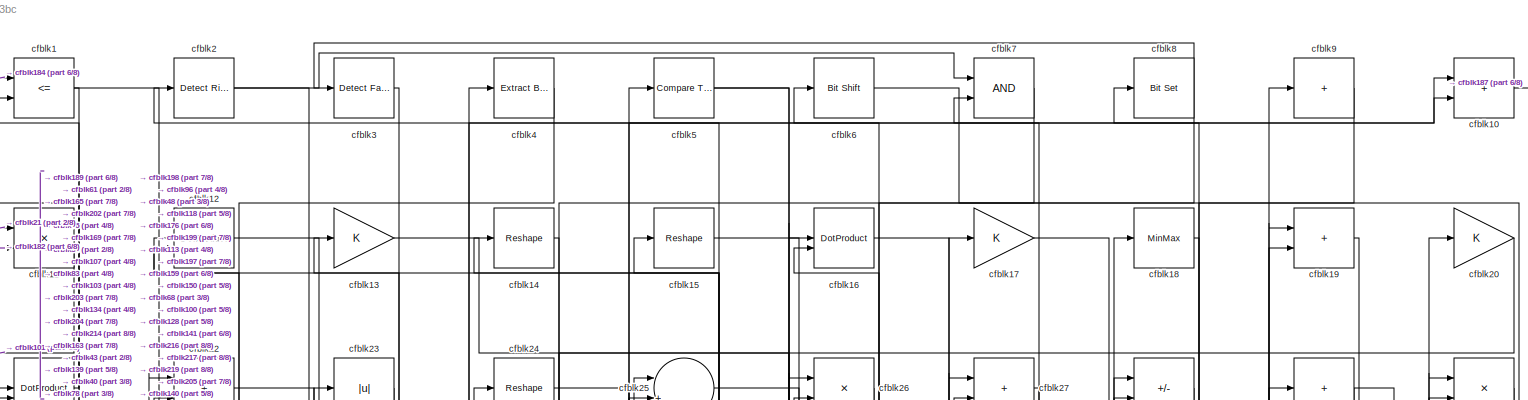
[diagram: root canvas - part 1/8, full width, top band]
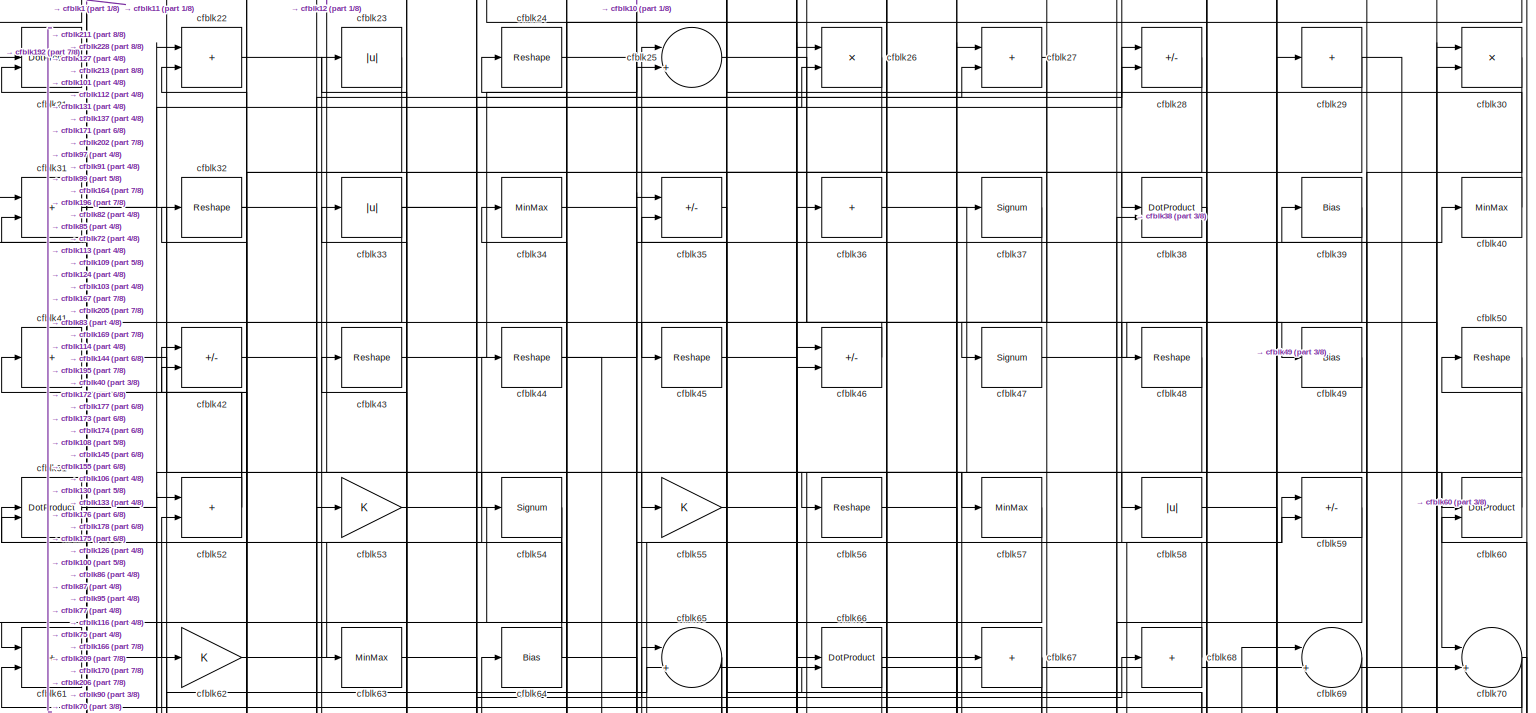
[diagram: root canvas - part 2/8, full width, top band]
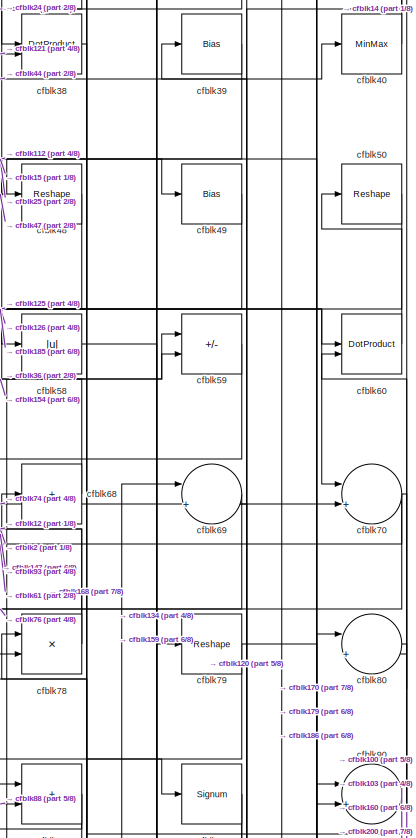
[diagram: root canvas - part 3/8, top right region]
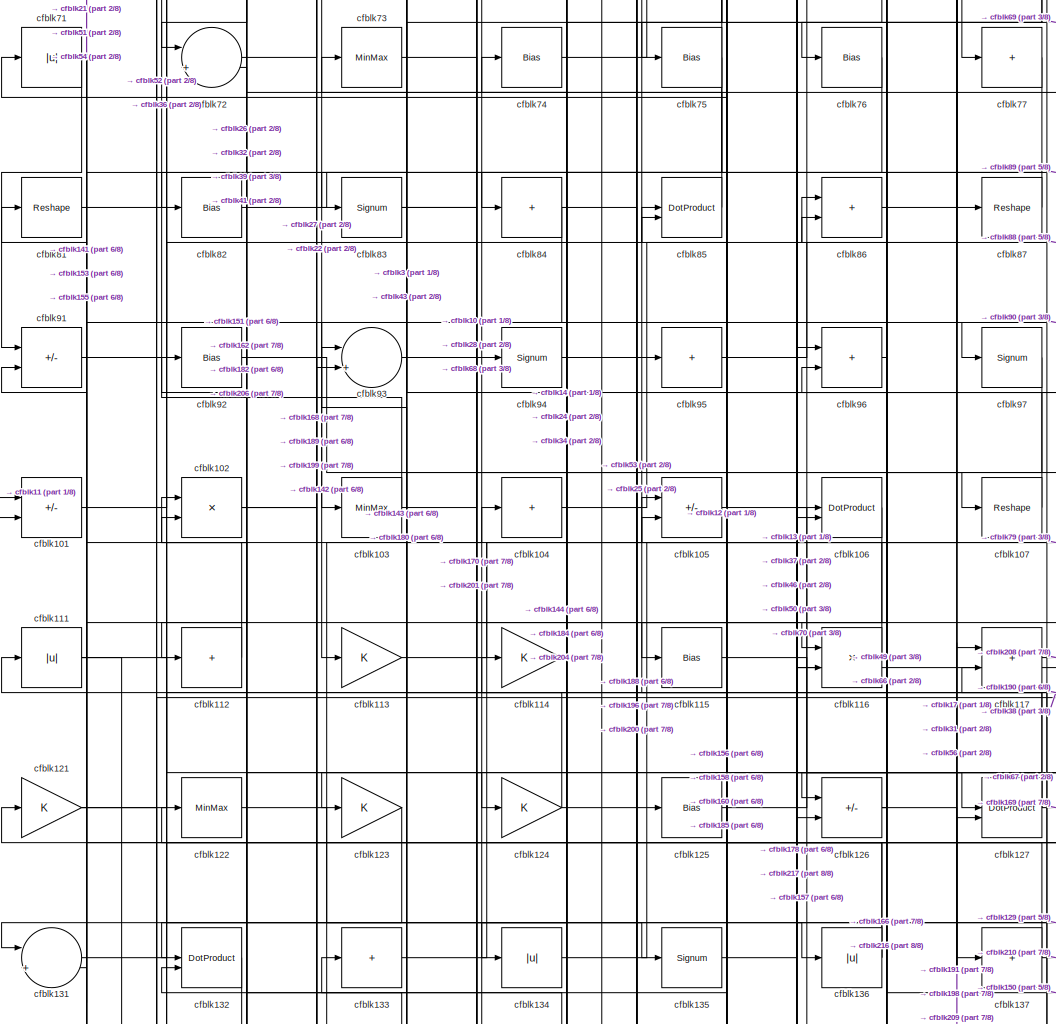
[diagram: root canvas - part 4/8, central region]
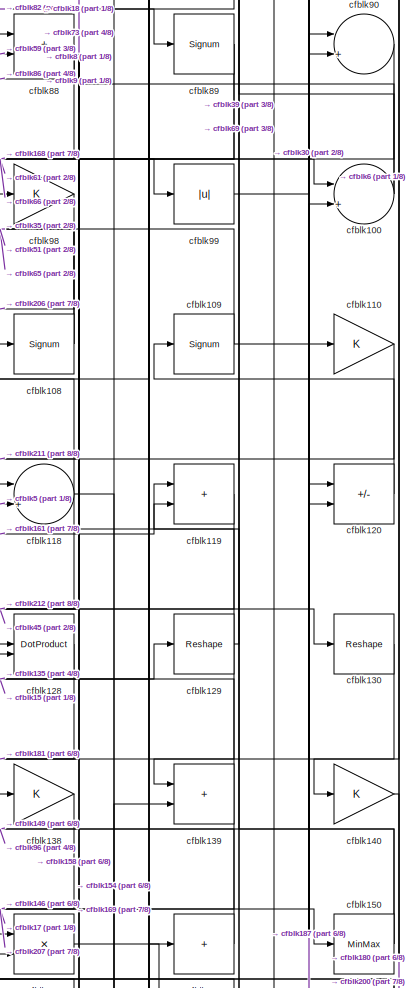
[diagram: root canvas - part 5/8, middle right region]
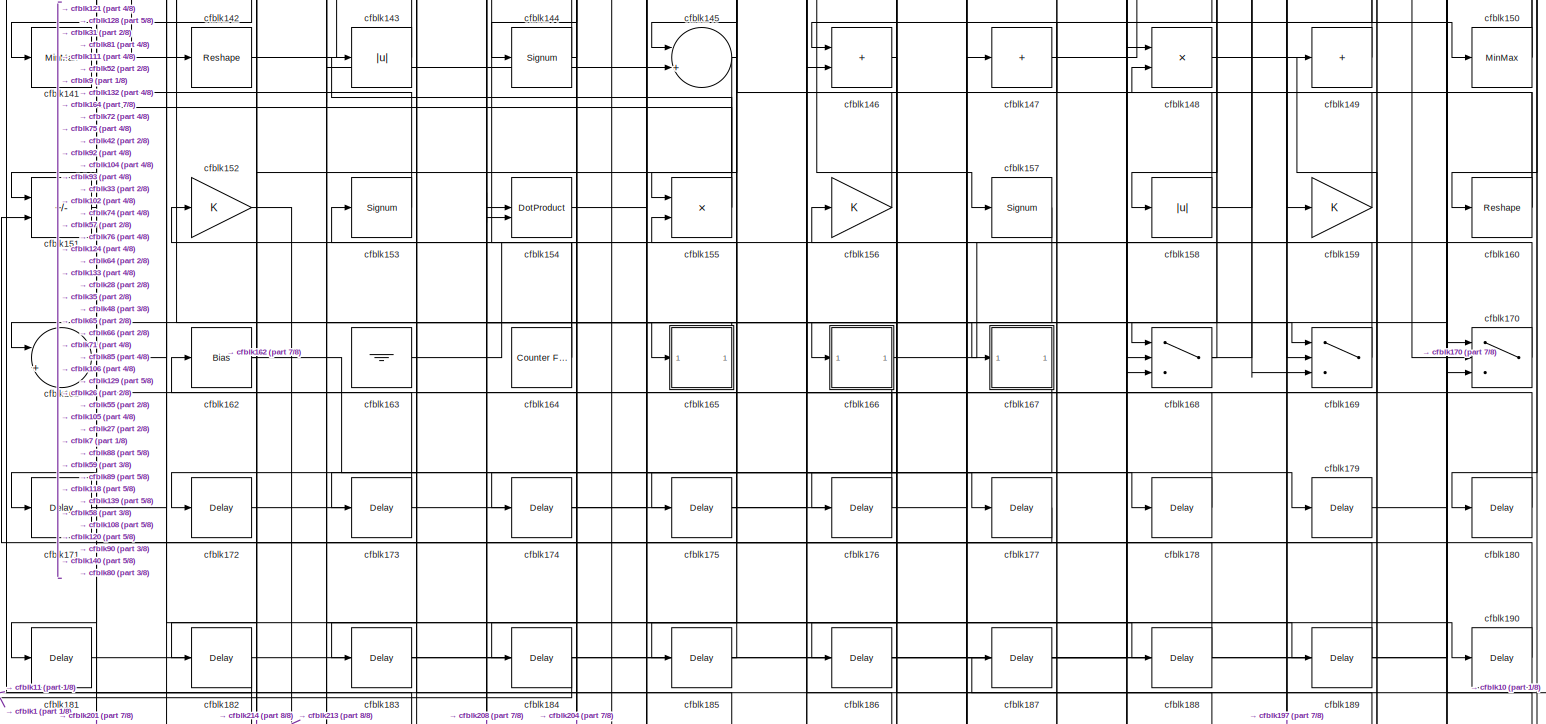
[diagram: root canvas - part 6/8, full width, bottom band]
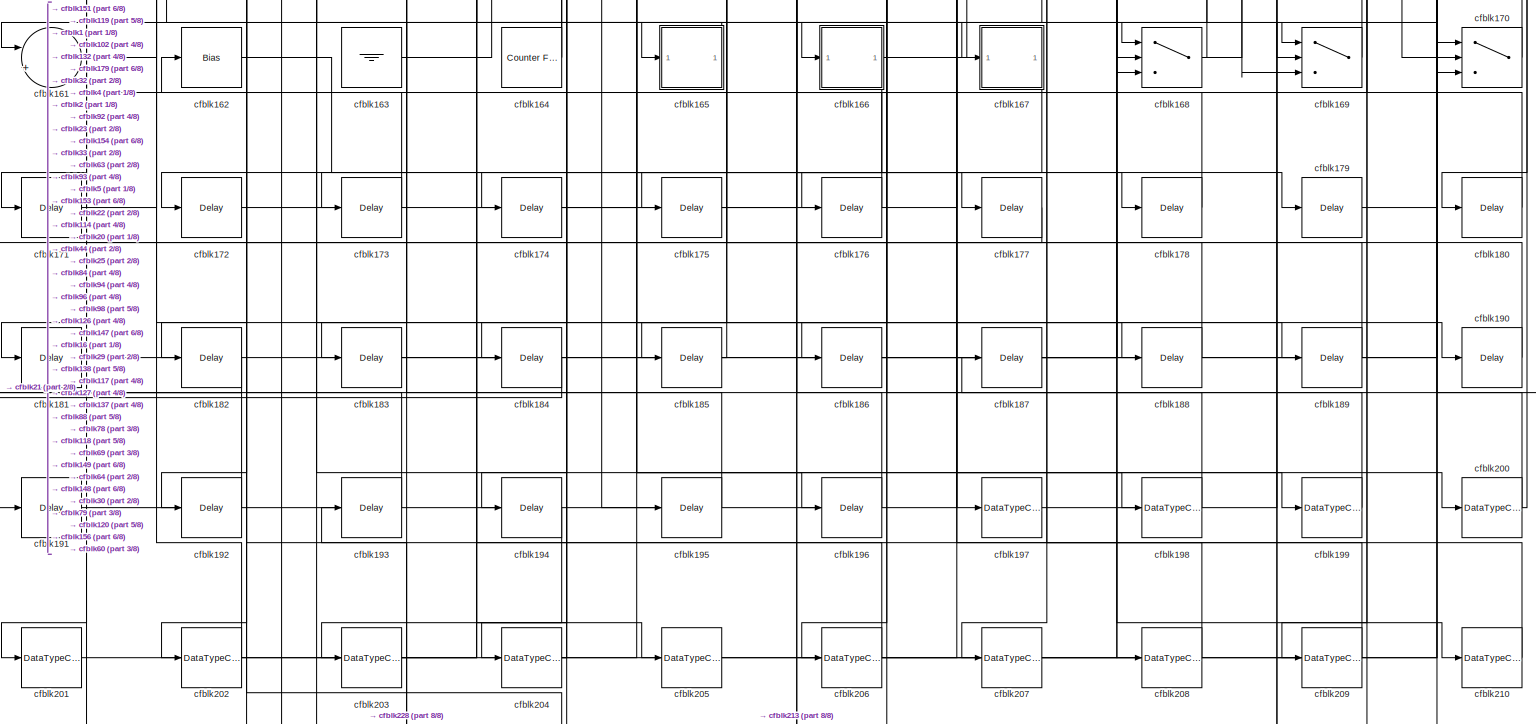
[diagram: root canvas - part 7/8, full width, bottom band]
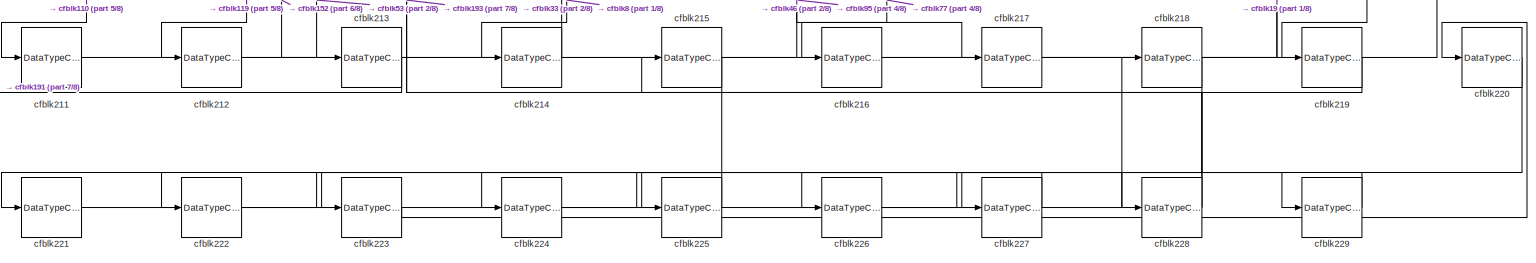
[diagram: root canvas - part 8/8, full width, bottom band]
MODEL slx_db558e9923bc
KIND model
CONFIG AbsTol = auto
CONFIG EnableMultiTasking = off
CONFIG FixedStep = auto
CONFIG MaxStep = auto
CONFIG MinStep = auto
CONFIG RelTol = 1e-3
CONFIG SampleTimeConstraint = Unconstrained
CONFIG SolverName = VariableStepAuto
CONFIG StartTime = 0.0
CONFIG StopTime = 10.0
BLOCK [RelationalOperator] cfblk1
  InputSameDT = off
  Operator = <=
  OutDataTypeStr = boolean
BLOCK [Sum] cfblk10
  IconShape = rectangular
BLOCK [Sum] cfblk100
  Inputs = |++
BLOCK [Sum] cfblk101
  IconShape = rectangular
  Inputs = +-
BLOCK [Product] cfblk102
  Inputs = */
  RndMeth = Zero
  SaturateOnIntegerOverflow = on
BLOCK [MinMax] cfblk103
BLOCK [Sum] cfblk104
  IconShape = rectangular
  Inputs = +
BLOCK [Sum] cfblk105
  IconShape = rectangular
  Inputs = +-
BLOCK [DotProduct] cfblk106
  OutDataTypeStr = Inherit: Inherit via internal rule
BLOCK [Reshape] cfblk107
BLOCK [Signum] cfblk108
BLOCK [Signum] cfblk109
BLOCK [Product] cfblk11
  Inputs = */
  RndMeth = Zero
  SaturateOnIntegerOverflow = on
BLOCK [Gain] cfblk110
BLOCK [Abs] cfblk111
  SaturateOnIntegerOverflow = off
BLOCK [Sum] cfblk112
  IconShape = rectangular
  Inputs = +
BLOCK [Gain] cfblk113
BLOCK [Gain] cfblk114
BLOCK [Bias] cfblk115
  Bias = 0.0
  SaturateOnIntegerOverflow = off
BLOCK [Product] cfblk116
  Inputs = */
  RndMeth = Zero
  SaturateOnIntegerOverflow = on
BLOCK [Sum] cfblk117
  IconShape = rectangular
BLOCK [Sum] cfblk118
  Inputs = |++
BLOCK [Sum] cfblk119
  IconShape = rectangular
BLOCK [DotProduct] cfblk12
  OutDataTypeStr = Inherit: Inherit via internal rule
BLOCK [Sum] cfblk120
  IconShape = rectangular
  Inputs = +-
BLOCK [Gain] cfblk121
BLOCK [MinMax] cfblk122
BLOCK [Gain] cfblk123
BLOCK [Gain] cfblk124
BLOCK [Bias] cfblk125
  Bias = 0.0
  SaturateOnIntegerOverflow = off
BLOCK [Sum] cfblk126
  IconShape = rectangular
  Inputs = +-
BLOCK [DotProduct] cfblk127
  OutDataTypeStr = Inherit: Inherit via internal rule
BLOCK [DotProduct] cfblk128
  OutDataTypeStr = Inherit: Inherit via internal rule
BLOCK [Reshape] cfblk129
BLOCK [Gain] cfblk13
BLOCK [Reshape] cfblk130
BLOCK [Sum] cfblk131
  Inputs = |++
BLOCK [DotProduct] cfblk132
  OutDataTypeStr = Inherit: Inherit via internal rule
BLOCK [Sum] cfblk133
  IconShape = rectangular
  Inputs = +
BLOCK [Abs] cfblk134
  SaturateOnIntegerOverflow = off
BLOCK [Signum] cfblk135
BLOCK [Abs] cfblk136
  SaturateOnIntegerOverflow = off
BLOCK [Sum] cfblk137
  IconShape = rectangular
  Inputs = +
BLOCK [Gain] cfblk138
BLOCK [Sum] cfblk139
  IconShape = rectangular
BLOCK [Reshape] cfblk14
BLOCK [Gain] cfblk140
BLOCK [MinMax] cfblk141
BLOCK [Reshape] cfblk142
BLOCK [Abs] cfblk143
  SaturateOnIntegerOverflow = off
BLOCK [Signum] cfblk144
BLOCK [Sum] cfblk145
  Inputs = |++
BLOCK [Sum] cfblk146
  IconShape = rectangular
BLOCK [Sum] cfblk147
  IconShape = rectangular
  Inputs = +
BLOCK [Product] cfblk148
  Inputs = */
  RndMeth = Zero
  SaturateOnIntegerOverflow = on
BLOCK [Sum] cfblk149
  IconShape = rectangular
  Inputs = +
BLOCK [Reshape] cfblk15
BLOCK [MinMax] cfblk150
BLOCK [Sum] cfblk151
  IconShape = rectangular
  Inputs = +-
BLOCK [Gain] cfblk152
BLOCK [Signum] cfblk153
BLOCK [DotProduct] cfblk154
  OutDataTypeStr = Inherit: Inherit via internal rule
BLOCK [Product] cfblk155
  Inputs = */
  RndMeth = Zero
  SaturateOnIntegerOverflow = on
BLOCK [Gain] cfblk156
BLOCK [Signum] cfblk157
BLOCK [Abs] cfblk158
  SaturateOnIntegerOverflow = off
BLOCK [Gain] cfblk159
BLOCK [DotProduct] cfblk16
  OutDataTypeStr = Inherit: Inherit via internal rule
BLOCK [Reshape] cfblk160
BLOCK [Sum] cfblk161
  Inputs = |++
BLOCK [Bias] cfblk162
  Bias = 0.0
  SaturateOnIntegerOverflow = off
BLOCK [Ground] cfblk163
BLOCK [Reference] cfblk164  REF=hdlsllib/Sources/Counter
Free-Running
  SourceBlock = hdlsllib/Sources/Counter\nFree-Running
  SourceType = Counter Free-Running
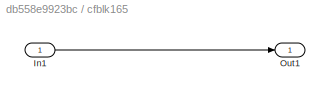
BLOCK [SubSystem] cfblk165
  LibrarySourceBlock = hdlsllib/Ports &\nSubsystems/Subsystem
BLOCK [Inport] cfblk165/In1
BLOCK [Outport] cfblk165/Out1
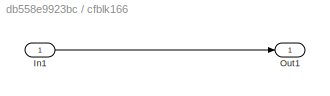
BLOCK [SubSystem] cfblk166
  LibrarySourceBlock = hdlsllib/Ports &\nSubsystems/Subsystem
BLOCK [Inport] cfblk166/In1
BLOCK [Outport] cfblk166/Out1
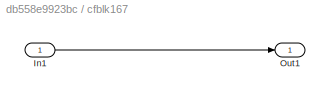
BLOCK [SubSystem] cfblk167
  LibrarySourceBlock = hdlsllib/Ports &\nSubsystems/Subsystem
BLOCK [Inport] cfblk167/In1
BLOCK [Outport] cfblk167/Out1
BLOCK [Switch] cfblk168
  InputSameDT = off
  SaturateOnIntegerOverflow = off
BLOCK [Switch] cfblk169
  InputSameDT = off
  SaturateOnIntegerOverflow = off
BLOCK [Gain] cfblk17
BLOCK [Switch] cfblk170
  InputSameDT = off
  SaturateOnIntegerOverflow = off
BLOCK [Delay] cfblk171
  InputPortMap = u0
  SampleTime = 1
BLOCK [Delay] cfblk172
  InputPortMap = u0
  SampleTime = 1
BLOCK [Delay] cfblk173
  InputPortMap = u0
  SampleTime = 1
BLOCK [Delay] cfblk174
  InputPortMap = u0
  SampleTime = 1
BLOCK [Delay] cfblk175
  InputPortMap = u0
  SampleTime = 1
BLOCK [Delay] cfblk176
  InputPortMap = u0
  SampleTime = 1
BLOCK [Delay] cfblk177
  InputPortMap = u0
  SampleTime = 1
BLOCK [Delay] cfblk178
  InputPortMap = u0
  SampleTime = 1
BLOCK [Delay] cfblk179
  InputPortMap = u0
  SampleTime = 1
BLOCK [MinMax] cfblk18
BLOCK [Delay] cfblk180
  InputPortMap = u0
  SampleTime = 1
BLOCK [Delay] cfblk181
  InputPortMap = u0
  SampleTime = 1
BLOCK [Delay] cfblk182
  InputPortMap = u0
  SampleTime = 1
BLOCK [Delay] cfblk183
  InputPortMap = u0
  SampleTime = 1
BLOCK [Delay] cfblk184
  InputPortMap = u0
  SampleTime = 1
BLOCK [Delay] cfblk185
  InputPortMap = u0
  SampleTime = 1
BLOCK [Delay] cfblk186
  InputPortMap = u0
  SampleTime = 1
BLOCK [Delay] cfblk187
  InputPortMap = u0
  SampleTime = 1
BLOCK [Delay] cfblk188
  InputPortMap = u0
  SampleTime = 1
BLOCK [Delay] cfblk189
  InputPortMap = u0
  SampleTime = 1
BLOCK [Sum] cfblk19
  IconShape = rectangular
BLOCK [Delay] cfblk190
  InputPortMap = u0
  SampleTime = 1
BLOCK [Delay] cfblk191
  InputPortMap = u0
  SampleTime = 1
BLOCK [Delay] cfblk192
  InputPortMap = u0
  SampleTime = 1
BLOCK [Delay] cfblk193
  InputPortMap = u0
  SampleTime = 1
BLOCK [Delay] cfblk194
  InputPortMap = u0
  SampleTime = 1
BLOCK [Delay] cfblk195
  InputPortMap = u0
  SampleTime = 1
BLOCK [Delay] cfblk196
  InputPortMap = u0
  SampleTime = 1
BLOCK [DataTypeConversion] cfblk197
  OutDataTypeStr = uint8
  RndMeth = Floor
  SaturateOnIntegerOverflow = off
BLOCK [DataTypeConversion] cfblk198
  OutDataTypeStr = uint8
  RndMeth = Floor
  SaturateOnIntegerOverflow = off
BLOCK [DataTypeConversion] cfblk199
  OutDataTypeStr = uint8
  RndMeth = Floor
  SaturateOnIntegerOverflow = off
BLOCK [Reference] cfblk2  REF=hdlsllib/Logic and Bit
Operations/Detect Rise
Positive
  SourceBlock = hdlsllib/Logic and Bit\nOperations/Detect Rise\nPositive
  SourceType = Detect Rise Positive
BLOCK [Gain] cfblk20
BLOCK [DataTypeConversion] cfblk200
  RndMeth = Floor
  SaturateOnIntegerOverflow = off
BLOCK [DataTypeConversion] cfblk201
  OutDataTypeStr = uint8
  RndMeth = Floor
  SaturateOnIntegerOverflow = off
BLOCK [DataTypeConversion] cfblk202
  RndMeth = Floor
  SaturateOnIntegerOverflow = off
BLOCK [DataTypeConversion] cfblk203
  OutDataTypeStr = uint8
  RndMeth = Floor
  SaturateOnIntegerOverflow = off
BLOCK [DataTypeConversion] cfblk204
  RndMeth = Floor
  SaturateOnIntegerOverflow = off
BLOCK [DataTypeConversion] cfblk205
  OutDataTypeStr = uint8
  RndMeth = Floor
  SaturateOnIntegerOverflow = off
BLOCK [DataTypeConversion] cfblk206
  RndMeth = Floor
  SaturateOnIntegerOverflow = off
BLOCK [DataTypeConversion] cfblk207
  OutDataTypeStr = uint8
  RndMeth = Floor
  SaturateOnIntegerOverflow = off
BLOCK [DataTypeConversion] cfblk208
  OutDataTypeStr = uint8
  RndMeth = Floor
  SaturateOnIntegerOverflow = off
BLOCK [DataTypeConversion] cfblk209
  OutDataTypeStr = uint8
  RndMeth = Floor
  SaturateOnIntegerOverflow = off
BLOCK [DotProduct] cfblk21
  OutDataTypeStr = Inherit: Inherit via internal rule
BLOCK [DataTypeConversion] cfblk210
  OutDataTypeStr = uint8
  RndMeth = Floor
  SaturateOnIntegerOverflow = off
BLOCK [DataTypeConversion] cfblk211
  OutDataTypeStr = uint8
  RndMeth = Floor
  SaturateOnIntegerOverflow = off
BLOCK [DataTypeConversion] cfblk212
  OutDataTypeStr = uint8
  RndMeth = Floor
  SaturateOnIntegerOverflow = off
BLOCK [DataTypeConversion] cfblk213
  RndMeth = Floor
  SaturateOnIntegerOverflow = off
BLOCK [DataTypeConversion] cfblk214
  OutDataTypeStr = uint8
  RndMeth = Floor
  SaturateOnIntegerOverflow = off
BLOCK [DataTypeConversion] cfblk215
  RndMeth = Floor
  SaturateOnIntegerOverflow = off
BLOCK [DataTypeConversion] cfblk216
  OutDataTypeStr = uint8
  RndMeth = Floor
  SaturateOnIntegerOverflow = off
BLOCK [DataTypeConversion] cfblk217
  OutDataTypeStr = uint8
  RndMeth = Floor
  SaturateOnIntegerOverflow = off
BLOCK [DataTypeConversion] cfblk218
  RndMeth = Floor
  SaturateOnIntegerOverflow = off
BLOCK [DataTypeConversion] cfblk219
  OutDataTypeStr = uint8
  RndMeth = Floor
  SaturateOnIntegerOverflow = off
BLOCK [Sum] cfblk22
  IconShape = rectangular
BLOCK [DataTypeConversion] cfblk220
  RndMeth = Floor
  SaturateOnIntegerOverflow = off
BLOCK [DataTypeConversion] cfblk221
  OutDataTypeStr = uint8
  RndMeth = Floor
  SaturateOnIntegerOverflow = off
BLOCK [DataTypeConversion] cfblk222
  RndMeth = Floor
  SaturateOnIntegerOverflow = off
BLOCK [DataTypeConversion] cfblk223
  OutDataTypeStr = uint8
  RndMeth = Floor
  SaturateOnIntegerOverflow = off
BLOCK [DataTypeConversion] cfblk224
  RndMeth = Floor
  SaturateOnIntegerOverflow = off
BLOCK [DataTypeConversion] cfblk225
  OutDataTypeStr = uint8
  RndMeth = Floor
  SaturateOnIntegerOverflow = off
BLOCK [DataTypeConversion] cfblk226
  RndMeth = Floor
  SaturateOnIntegerOverflow = off
BLOCK [DataTypeConversion] cfblk227
  OutDataTypeStr = uint8
  RndMeth = Floor
  SaturateOnIntegerOverflow = off
BLOCK [DataTypeConversion] cfblk228
  RndMeth = Floor
  SaturateOnIntegerOverflow = off
BLOCK [DataTypeConversion] cfblk229
  OutDataTypeStr = uint8
  RndMeth = Floor
  SaturateOnIntegerOverflow = off
BLOCK [Abs] cfblk23
  SaturateOnIntegerOverflow = off
BLOCK [Reshape] cfblk24
BLOCK [Sum] cfblk25
  Inputs = |++
BLOCK [Product] cfblk26
  Inputs = */
  RndMeth = Zero
  SaturateOnIntegerOverflow = on
BLOCK [Sum] cfblk27
  IconShape = rectangular
BLOCK [Sum] cfblk28
  IconShape = rectangular
  Inputs = +-
BLOCK [Sum] cfblk29
  IconShape = rectangular
  Inputs = +
BLOCK [Reference] cfblk3  REF=hdlsllib/Logic and Bit
Operations/Detect Fall
Negative
  SourceBlock = hdlsllib/Logic and Bit\nOperations/Detect Fall\nNegative
  SourceType = Detect Fall Negative
BLOCK [Product] cfblk30
  Inputs = */
  RndMeth = Zero
  SaturateOnIntegerOverflow = on
BLOCK [Sum] cfblk31
  IconShape = rectangular
BLOCK [Reshape] cfblk32
BLOCK [Abs] cfblk33
  SaturateOnIntegerOverflow = off
BLOCK [MinMax] cfblk34
BLOCK [Sum] cfblk35
  IconShape = rectangular
  Inputs = +-
BLOCK [Sum] cfblk36
  IconShape = rectangular
  Inputs = +
BLOCK [Signum] cfblk37
BLOCK [DotProduct] cfblk38
  OutDataTypeStr = Inherit: Inherit via internal rule
BLOCK [Bias] cfblk39
  Bias = 0.0
  SaturateOnIntegerOverflow = off
BLOCK [Reference] cfblk4  REF=simulink/Logic and Bit
Operations/Extract Bits
  LibrarySourceBlock = hdlsllib/Logic and Bit\nOperations/Extract Bits
  SourceBlock = simulink/Logic and Bit\nOperations/Extract Bits
  SourceType = Extract Bits
BLOCK [MinMax] cfblk40
BLOCK [Sum] cfblk41
  IconShape = rectangular
  Inputs = +
BLOCK [Sum] cfblk42
  IconShape = rectangular
  Inputs = +-
BLOCK [Reshape] cfblk43
BLOCK [Reshape] cfblk44
BLOCK [Reshape] cfblk45
BLOCK [Sum] cfblk46
  IconShape = rectangular
  Inputs = +-
BLOCK [Signum] cfblk47
BLOCK [Reshape] cfblk48
BLOCK [Bias] cfblk49
  Bias = 0.0
  SaturateOnIntegerOverflow = off
BLOCK [Reference] cfblk5  REF=hdlsllib/Logic and Bit
Operations/Compare
To Zero
  SourceBlock = hdlsllib/Logic and Bit\nOperations/Compare\nTo Zero
  SourceType = Compare To Zero
BLOCK [Reshape] cfblk50
BLOCK [DotProduct] cfblk51
  OutDataTypeStr = Inherit: Inherit via internal rule
BLOCK [Sum] cfblk52
  IconShape = rectangular
BLOCK [Gain] cfblk53
BLOCK [Signum] cfblk54
BLOCK [Gain] cfblk55
BLOCK [Reshape] cfblk56
BLOCK [MinMax] cfblk57
BLOCK [Abs] cfblk58
  SaturateOnIntegerOverflow = off
BLOCK [Sum] cfblk59
  IconShape = rectangular
  Inputs = +-
BLOCK [Reference] cfblk6  REF=hdlsllib/Logic and Bit
Operations/Bit Shift
  SourceBlock = hdlsllib/Logic and Bit\nOperations/Bit Shift
  SourceType = Bit Shift
BLOCK [DotProduct] cfblk60
  OutDataTypeStr = Inherit: Inherit via internal rule
BLOCK [Sum] cfblk61
  IconShape = rectangular
BLOCK [Gain] cfblk62
BLOCK [MinMax] cfblk63
BLOCK [Bias] cfblk64
  Bias = 0.0
  SaturateOnIntegerOverflow = off
BLOCK [Sum] cfblk65
  Inputs = |++
BLOCK [DotProduct] cfblk66
  OutDataTypeStr = Inherit: Inherit via internal rule
BLOCK [Sum] cfblk67
  IconShape = rectangular
  Inputs = +
BLOCK [Sum] cfblk68
  IconShape = rectangular
  Inputs = +
BLOCK [Sum] cfblk69
  Inputs = |++
BLOCK [Logic] cfblk7
  AllPortsSameDT = off
  OutDataTypeStr = boolean
BLOCK [Sum] cfblk70
  Inputs = |++
BLOCK [Abs] cfblk71
  SaturateOnIntegerOverflow = off
BLOCK [Sum] cfblk72
  Inputs = |++
BLOCK [MinMax] cfblk73
BLOCK [Bias] cfblk74
  Bias = 0.0
  SaturateOnIntegerOverflow = off
BLOCK [Bias] cfblk75
  Bias = 0.0
  SaturateOnIntegerOverflow = off
BLOCK [Bias] cfblk76
  Bias = 0.0
  SaturateOnIntegerOverflow = off
BLOCK [Sum] cfblk77
  IconShape = rectangular
  Inputs = +
BLOCK [Product] cfblk78
  Inputs = */
  RndMeth = Zero
  SaturateOnIntegerOverflow = on
BLOCK [Reshape] cfblk79
BLOCK [Reference] cfblk8  REF=simulink/Logic and Bit
Operations/Bit Set
  LibrarySourceBlock = hdlsllib/Logic and Bit\nOperations/Bit Set
  SourceBlock = simulink/Logic and Bit\nOperations/Bit Set
  SourceType = Bit Set
BLOCK [Sum] cfblk80
  Inputs = |++
BLOCK [Reshape] cfblk81
BLOCK [Bias] cfblk82
  Bias = 0.0
  SaturateOnIntegerOverflow = off
BLOCK [Signum] cfblk83
BLOCK [Sum] cfblk84
  IconShape = rectangular
  Inputs = +
BLOCK [DotProduct] cfblk85
  OutDataTypeStr = Inherit: Inherit via internal rule
BLOCK [Sum] cfblk86
  IconShape = rectangular
BLOCK [Reshape] cfblk87
BLOCK [Sum] cfblk88
  IconShape = rectangular
BLOCK [Signum] cfblk89
BLOCK [Sum] cfblk9
  IconShape = rectangular
  Inputs = +
BLOCK [Sum] cfblk90
  Inputs = |++
BLOCK [Sum] cfblk91
  IconShape = rectangular
  Inputs = +-
BLOCK [Bias] cfblk92
  Bias = 0.0
  SaturateOnIntegerOverflow = off
BLOCK [Sum] cfblk93
  Inputs = |++
BLOCK [Signum] cfblk94
BLOCK [Sum] cfblk95
  IconShape = rectangular
  Inputs = +
BLOCK [Sum] cfblk96
  IconShape = rectangular
BLOCK [Signum] cfblk97
BLOCK [Gain] cfblk98
BLOCK [Abs] cfblk99
  SaturateOnIntegerOverflow = off
NET cfblk100:1 -> cfblk69:2, cfblk8:1
LINE cfblk101:1 -> cfblk85:1
NET cfblk102:1 -> cfblk199:1, cfblk93:2
NET cfblk103:1 -> cfblk10:2, cfblk52:2
LINE cfblk104:1 -> cfblk86:1
LINE cfblk105:1 -> cfblk157:1
LINE cfblk106:1 -> cfblk115:1
LINE cfblk107:1 -> cfblk13:1
NET cfblk108:1 -> cfblk35:2, cfblk65:1
NET cfblk109:1 -> cfblk100:2, cfblk51:1
LINE cfblk10:1 -> cfblk187:1
LINE cfblk110:1 -> cfblk211:1
NET cfblk111:1 -> cfblk124:1, cfblk142:1
LINE cfblk112:1 -> cfblk21:2
LINE cfblk113:1 -> cfblk17:1
LINE cfblk114:1 -> cfblk24:1
LINE cfblk115:1 -> cfblk127:1
LINE cfblk116:1 -> cfblk105:1
LINE cfblk117:1 -> cfblk208:1
NET cfblk118:1 -> cfblk154:2, cfblk169:3, cfblk6:1
LINE cfblk119:1 -> cfblk212:1
LINE cfblk11:1 -> cfblk101:1
LINE cfblk120:1 -> cfblk39:1
NET cfblk121:1 -> cfblk190:1, cfblk38:2
LINE cfblk122:1 -> cfblk135:1
LINE cfblk123:1 -> cfblk132:1
NET cfblk124:1 -> cfblk188:1, cfblk43:1
LINE cfblk125:1 -> cfblk70:1
NET cfblk126:1 -> cfblk198:1, cfblk66:2
NET cfblk127:1 -> cfblk169:1, cfblk25:1, cfblk34:1
LINE cfblk128:1 -> cfblk181:1
NET cfblk129:1 -> cfblk109:1, cfblk146:2, cfblk73:1
LINE cfblk12:1 -> cfblk55:1
LINE cfblk130:1 -> cfblk139:1
LINE cfblk131:1 -> cfblk105:2
LINE cfblk132:1 -> cfblk151:1
LINE cfblk133:1 -> cfblk46:1
LINE cfblk134:1 -> cfblk79:1
LINE cfblk135:1 -> cfblk129:1
NET cfblk136:1 -> cfblk122:1, cfblk91:2
NET cfblk137:1 -> cfblk210:1, cfblk51:2
LINE cfblk138:1 -> cfblk207:1
NET cfblk139:1 -> cfblk146:1, cfblk15:1
LINE cfblk13:1 -> cfblk96:1
LINE cfblk140:1 -> cfblk180:1
LINE cfblk141:1 -> cfblk9:1
LINE cfblk142:1 -> cfblk104:1
LINE cfblk143:1 -> cfblk92:1
NET cfblk144:1 -> cfblk102:1, cfblk74:1
NET cfblk145:1 -> cfblk172:1, cfblk65:2
LINE cfblk146:1 -> cfblk186:1
LINE cfblk147:1 -> cfblk59:1
LINE cfblk148:1 -> cfblk162:1
LINE cfblk149:1 -> cfblk108:1
LINE cfblk14:1 -> cfblk134:1
NET cfblk150:1 -> cfblk119:2, cfblk96:2
LINE cfblk151:1 -> cfblk201:1
LINE cfblk152:1 -> cfblk213:1
LINE cfblk153:1 -> cfblk81:1
LINE cfblk154:1 -> cfblk59:2
NET cfblk155:1 -> cfblk121:1, cfblk143:1
LINE cfblk156:1 -> cfblk133:1
LINE cfblk157:1 -> cfblk183:1
NET cfblk158:1 -> cfblk139:2, cfblk71:1
LINE cfblk159:1 -> cfblk7:2
LINE cfblk15:1 -> cfblk48:1
NET cfblk160:1 -> cfblk111:1, cfblk148:2
LINE cfblk161:1 -> cfblk119:1
NET cfblk162:1 -> cfblk102:2, cfblk179:1
LINE cfblk163:1 -> cfblk5:1
NET cfblk164:1 -> cfblk153:1, cfblk22:2
LINE cfblk165/In1:1 -> cfblk165/Out1:1
LINE cfblk165:1 -> cfblk161:1
LINE cfblk166/In1:1 -> cfblk166/Out1:1
NET cfblk166:1 -> cfblk194:1, cfblk29:1
LINE cfblk167/In1:1 -> cfblk167/Out1:1
LINE cfblk167:1 -> cfblk192:1
NET cfblk168:1 -> cfblk69:1, cfblk78:1
LINE cfblk169:1 -> cfblk64:1
LINE cfblk16:1 -> cfblk197:1
LINE cfblk170:1 -> cfblk156:1
LINE cfblk171:1 -> cfblk52:1
LINE cfblk172:1 -> cfblk35:1
LINE cfblk173:1 -> cfblk31:1
LINE cfblk174:1 -> cfblk26:1
LINE cfblk175:1 -> cfblk27:1
LINE cfblk176:1 -> cfblk66:1
LINE cfblk177:1 -> cfblk151:2
LINE cfblk178:1 -> cfblk106:1
LINE cfblk179:1 -> cfblk90:1
LINE cfblk17:1 -> cfblk150:1
LINE cfblk180:1 -> cfblk93:1
LINE cfblk181:1 -> cfblk88:1
LINE cfblk182:1 -> cfblk11:2
LINE cfblk183:1 -> cfblk148:1
LINE cfblk184:1 -> cfblk1:1
LINE cfblk185:1 -> cfblk85:2
LINE cfblk186:1 -> cfblk80:1
LINE cfblk187:1 -> cfblk120:2
LINE cfblk188:1 -> cfblk155:2
LINE cfblk189:1 -> cfblk1:2
LINE cfblk18:1 -> cfblk118:1
LINE cfblk190:1 -> cfblk72:2
LINE cfblk191:1 -> cfblk127:2
LINE cfblk192:1 -> cfblk21:1
LINE cfblk193:1 -> cfblk161:2
LINE cfblk194:1 -> cfblk203:1
LINE cfblk195:1 -> cfblk23:1
LINE cfblk196:1 -> cfblk32:1
LINE cfblk197:1 -> cfblk149:1
LINE cfblk198:1 -> cfblk16:1
LINE cfblk199:1 -> cfblk16:2
LINE cfblk19:1 -> cfblk219:1
NET cfblk1:1 -> cfblk165:1, cfblk61:1
NET cfblk200:1 -> cfblk120:1, cfblk60:2
LINE cfblk201:1 -> cfblk94:1
NET cfblk202:1 -> cfblk22:1, cfblk25:2
LINE cfblk203:1 -> cfblk4:1
NET cfblk204:1 -> cfblk114:1, cfblk147:1
LINE cfblk205:1 -> cfblk20:1
NET cfblk206:1 -> cfblk132:2, cfblk30:1
LINE cfblk207:1 -> cfblk98:1
LINE cfblk208:1 -> cfblk154:1
LINE cfblk209:1 -> cfblk117:1
LINE cfblk20:1 -> cfblk204:1
LINE cfblk210:1 -> cfblk117:2
LINE cfblk211:1 -> cfblk53:1
LINE cfblk212:1 -> cfblk110:1
NET cfblk213:1 -> cfblk191:1, cfblk46:2
LINE cfblk214:1 -> cfblk152:1
LINE cfblk215:1 -> cfblk221:1
LINE cfblk216:1 -> cfblk19:1
LINE cfblk217:1 -> cfblk19:2
LINE cfblk218:1 -> cfblk223:1
LINE cfblk219:1 -> cfblk215:1
LINE cfblk21:1 -> cfblk11:1
LINE cfblk220:1 -> cfblk225:1
LINE cfblk221:1 -> cfblk218:1
LINE cfblk222:1 -> cfblk227:1
LINE cfblk223:1 -> cfblk220:1
LINE cfblk224:1 -> cfblk229:1
LINE cfblk225:1 -> cfblk222:1
LINE cfblk226:1 -> cfblk228:1
LINE cfblk227:1 -> cfblk224:1
NET cfblk228:1 -> cfblk193:1, cfblk33:1
LINE cfblk229:1 -> cfblk226:1
LINE cfblk22:1 -> cfblk113:1
LINE cfblk23:1 -> cfblk62:1
LINE cfblk24:1 -> cfblk38:1
LINE cfblk25:1 -> cfblk90:2
LINE cfblk26:1 -> cfblk72:1
LINE cfblk27:1 -> cfblk47:1
LINE cfblk28:1 -> cfblk155:1
NET cfblk29:1 -> cfblk170:2, cfblk63:1
NET cfblk2:1 -> cfblk169:2, cfblk7:1
LINE cfblk30:1 -> cfblk209:1
NET cfblk31:1 -> cfblk137:1, cfblk28:2
NET cfblk32:1 -> cfblk56:1, cfblk82:1
NET cfblk33:1 -> cfblk167:1, cfblk171:1, cfblk26:2
LINE cfblk34:1 -> cfblk57:1
LINE cfblk35:1 -> cfblk145:1
LINE cfblk36:1 -> cfblk60:1
LINE cfblk37:1 -> cfblk106:2
LINE cfblk38:1 -> cfblk58:1
LINE cfblk39:1 -> cfblk112:1
LINE cfblk3:1 -> cfblk83:1
LINE cfblk40:1 -> cfblk14:1
LINE cfblk41:1 -> cfblk77:1
LINE cfblk42:1 -> cfblk145:2
LINE cfblk43:1 -> cfblk10:1
NET cfblk44:1 -> cfblk195:1, cfblk40:1
LINE cfblk45:1 -> cfblk130:1
LINE cfblk46:1 -> cfblk45:1
LINE cfblk47:1 -> cfblk49:1
LINE cfblk48:1 -> cfblk185:1
LINE cfblk49:1 -> cfblk126:1
LINE cfblk4:1 -> cfblk202:1
LINE cfblk50:1 -> cfblk126:2
NET cfblk51:1 -> cfblk54:1, cfblk97:1
NET cfblk52:1 -> cfblk31:2, cfblk42:2
LINE cfblk53:1 -> cfblk95:1
NET cfblk54:1 -> cfblk101:2, cfblk131:1
LINE cfblk55:1 -> cfblk178:1
LINE cfblk56:1 -> cfblk87:1
LINE cfblk57:1 -> cfblk144:1
LINE cfblk58:1 -> cfblk159:1
LINE cfblk59:1 -> cfblk88:2
NET cfblk5:1 -> cfblk118:2, cfblk128:2
LINE cfblk60:1 -> cfblk50:1
LINE cfblk61:1 -> cfblk99:1
LINE cfblk62:1 -> cfblk44:1
LINE cfblk63:1 -> cfblk205:1
NET cfblk64:1 -> cfblk177:1, cfblk42:1
NET cfblk65:1 -> cfblk173:1, cfblk174:1
NET cfblk66:1 -> cfblk100:1, cfblk175:1
NET cfblk67:1 -> cfblk116:1, cfblk75:1
LINE cfblk68:1 -> cfblk18:1
LINE cfblk69:1 -> cfblk76:1
LINE cfblk6:1 -> cfblk140:1
NET cfblk70:1 -> cfblk61:2, cfblk78:2, cfblk80:2
LINE cfblk71:1 -> cfblk91:1
LINE cfblk72:1 -> cfblk27:2
LINE cfblk73:1 -> cfblk107:1
LINE cfblk74:1 -> cfblk70:2
NET cfblk75:1 -> cfblk12:2, cfblk141:1, cfblk182:1
LINE cfblk76:1 -> cfblk184:1
LINE cfblk77:1 -> cfblk216:1
NET cfblk78:1 -> cfblk12:1, cfblk2:1
NET cfblk79:1 -> cfblk168:1, cfblk170:1
LINE cfblk7:1 -> cfblk176:1
LINE cfblk80:1 -> cfblk160:1
LINE cfblk81:1 -> cfblk136:1
LINE cfblk82:1 -> cfblk89:1
NET cfblk83:1 -> cfblk116:2, cfblk28:1
NET cfblk84:1 -> cfblk131:2, cfblk196:1
LINE cfblk85:1 -> cfblk41:1
LINE cfblk86:1 -> cfblk67:1
LINE cfblk87:1 -> cfblk84:1
NET cfblk88:1 -> cfblk168:2, cfblk86:2
NET cfblk89:1 -> cfblk138:1, cfblk158:1
NET cfblk8:1 -> cfblk214:1, cfblk3:1
LINE cfblk90:1 -> cfblk103:1
LINE cfblk91:1 -> cfblk36:1
NET cfblk92:1 -> cfblk125:1, cfblk168:3, cfblk189:1
NET cfblk93:1 -> cfblk170:3, cfblk68:1
LINE cfblk94:1 -> cfblk200:1
NET cfblk95:1 -> cfblk217:1, cfblk37:1
LINE cfblk96:1 -> cfblk166:1
LINE cfblk97:1 -> cfblk123:1
LINE cfblk98:1 -> cfblk206:1
LINE cfblk99:1 -> cfblk30:2
LINE cfblk9:1 -> cfblk128:1
note: NET lines group one-source signal fan-out (src -> all destinations, sorted); 1:1 wires keep LINE
